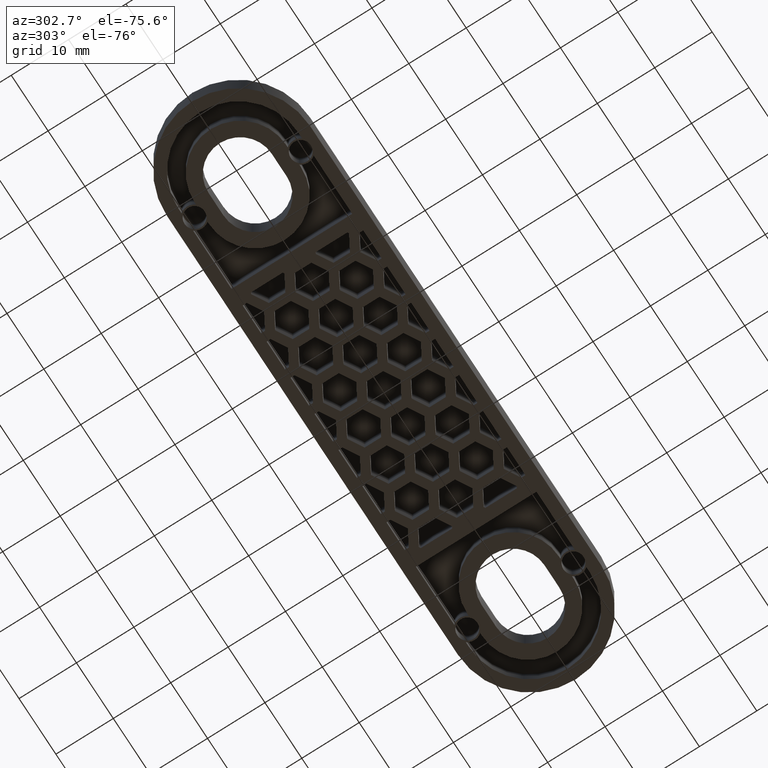
[diagram: clean part render]
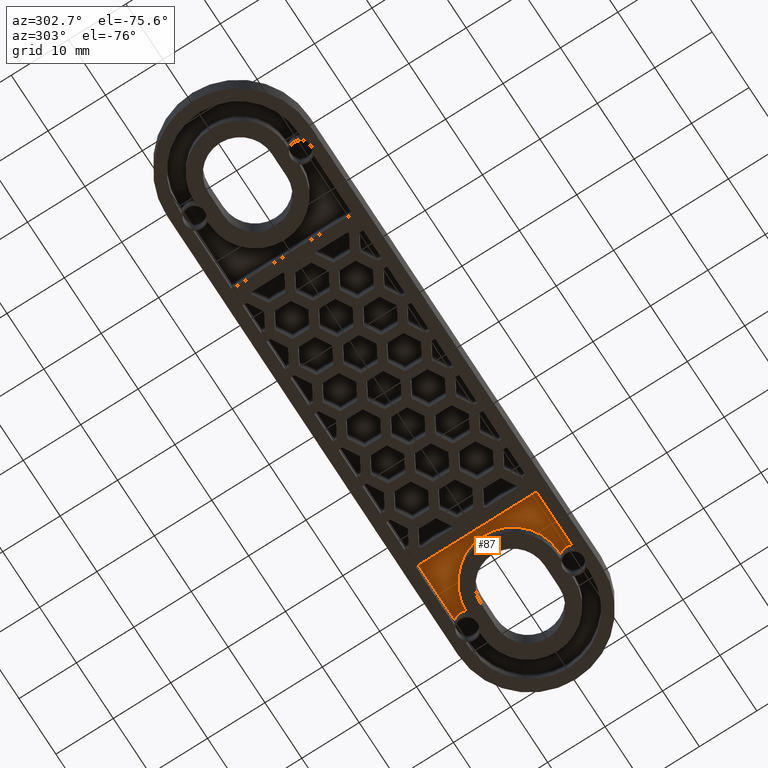
[diagram: same view with one face highlighted and labeled with its STEP entity id]
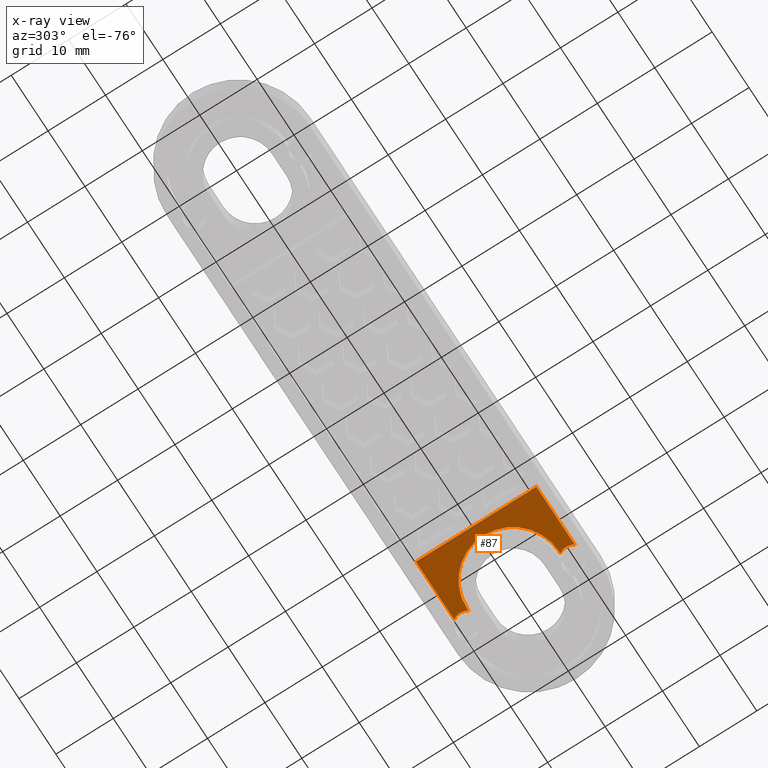
[diagram: x-ray of the same camera — body ghosted, the highlighted face saturated]
A machine part, auxiliary view. The second image highlights one B-rep face of the part: STEP entity #87.
The next image is the same camera in x-ray: the body ghosted, the highlighted face saturated — about 0% of this face is hidden behind the body in this view.
In plain terms, the highlighted planar face has unit normal (0, -0, -1).
Its self-contained STEP definition (entity closure, byte-faithful):
#87 = ADVANCED_FACE( '', ( #464 ), #465, .T. );
#464 = FACE_OUTER_BOUND( '', #1230, .T. );
#465 = PLANE( '', #1231 );
#1230 = EDGE_LOOP( '', ( #2076, #2077, #2078, #2079, #2080, #2081, #2082, #2083, #2084 ) );
#1231 = AXIS2_PLACEMENT_3D( '', #2085, #2086, #2087 );
#2076 = ORIENTED_EDGE( '', *, *, #4862, .F. );
#2077 = ORIENTED_EDGE( '', *, *, #4863, .T. );
#2078 = ORIENTED_EDGE( '', *, *, #4864, .F. );
#2079 = ORIENTED_EDGE( '', *, *, #4865, .T. );
#2080 = ORIENTED_EDGE( '', *, *, #4866, .F. );
#2081 = ORIENTED_EDGE( '', *, *, #4867, .F. );
#2082 = ORIENTED_EDGE( '', *, *, #4868, .F. );
#2083 = ORIENTED_EDGE( '', *, *, #4869, .F. );
#2084 = ORIENTED_EDGE( '', *, *, #4870, .F. );
#2085 = CARTESIAN_POINT( '', ( 39.5000000000000, -3.28575599888026E-015, 3.00000000000000 ) );
#2086 = DIRECTION( '', ( 0.000000000000000, -6.12303176911189E-017, -1.00000000000000 ) );
#2087 = DIRECTION( '', ( 0.000000000000000, -1.00000000000000, 6.12303176911189E-017 ) );
#4862 = EDGE_CURVE( '', #5815, #5816, #5817, .T. );
#4863 = EDGE_CURVE( '', #5815, #5818, #5819, .T. );
#4864 = EDGE_CURVE( '', #5820, #5818, #5821, .T. );
#4865 = EDGE_CURVE( '', #5820, #5822, #5823, .T. );
#4866 = EDGE_CURVE( '', #5824, #5822, #5825, .T. );
#4867 = EDGE_CURVE( '', #5826, #5824, #5827, .T. );
#4868 = EDGE_CURVE( '', #5828, #5826, #5829, .T. );
#4869 = EDGE_CURVE( '', #5830, #5828, #5831, .T. );
#4870 = EDGE_CURVE( '', #5816, #5830, #5832, .T. );
#5815 = VERTEX_POINT( '', #7345 );
#5816 = VERTEX_POINT( '', #7346 );
#5817 = CIRCLE( '', #7347, 2.00000000000000 );
#5818 = VERTEX_POINT( '', #7348 );
#5819 = LINE( '', #7349, #7350 );
#5820 = VERTEX_POINT( '', #7351 );
#5821 = LINE( '', #7352, #7353 );
#5822 = VERTEX_POINT( '', #7354 );
#5823 = LINE( '', #7355, #7356 );
#5824 = VERTEX_POINT( '', #7357 );
#5825 = CIRCLE( '', #7358, 2.00000000000000 );
#5826 = VERTEX_POINT( '', #7359 );
#5827 = LINE( '', #7360, #7361 );
#5828 = VERTEX_POINT( '', #7362 );
#5829 = CIRCLE( '', #7363, 7.99999999999999 );
#5830 = VERTEX_POINT( '', #7364 );
#5831 = CIRCLE( '', #7365, 8.00000000000000 );
#5832 = LINE( '', #7366, #7367 );
#7345 = CARTESIAN_POINT( '', ( 35.4387505004004, -10.5000000000000, 3.00000000000000 ) );
#7346 = CARTESIAN_POINT( '', ( 35.4387505004004, -7.99999999999998, 3.00000000000000 ) );
#7347 = AXIS2_PLACEMENT_3D( '', #9574, #9575, #9576 );
#7348 = CARTESIAN_POINT( '', ( 25.0000000000000, -10.5000000000000, 3.00000000000000 ) );
#7349 = CARTESIAN_POINT( '', ( 39.5000000000000, -10.5000000000000, 3.00000000000000 ) );
#7350 = VECTOR( '', #9577, 1000.00000000000 );
#7351 = CARTESIAN_POINT( '', ( 25.0000000000000, 10.5000000000000, 3.00000000000000 ) );
#7352 = CARTESIAN_POINT( '', ( 25.0000000000000, 10.5000000000000, 3.00000000000000 ) );
#7353 = VECTOR( '', #9578, 1000.00000000000 );
#7354 = CARTESIAN_POINT( '', ( 35.4387505004004, 10.5000000000000, 3.00000000000000 ) );
#7355 = CARTESIAN_POINT( '', ( -39.5000000000000, 10.5000000000000, 3.00000000000000 ) );
#7356 = VECTOR( '', #9579, 1000.00000000000 );
#7357 = CARTESIAN_POINT( '', ( 35.4387505004004, 8.00000000000001, 3.00000000000000 ) );
#7358 = AXIS2_PLACEMENT_3D( '', #9580, #9581, #9582 );
#7359 = CARTESIAN_POINT( '', ( 35.0000000000000, 8.00000000000000, 3.00000000000000 ) );
#7360 = CARTESIAN_POINT( '', ( 39.5000000000000, 8.00000000000001, 3.00000000000000 ) );
#7361 = VECTOR( '', #9583, 1000.00000000000 );
#7362 = CARTESIAN_POINT( '', ( 27.0000000000000, 1.23267552849110E-014, 3.00000000000000 ) );
#7363 = AXIS2_PLACEMENT_3D( '', #9584, #9585, #9586 );
#7364 = CARTESIAN_POINT( '', ( 35.0000000000000, -7.99999999999998, 3.00000000000000 ) );
#7365 = AXIS2_PLACEMENT_3D( '', #9587, #9588, #9589 );
#7366 = CARTESIAN_POINT( '', ( 39.5000000000000, -7.99999999999998, 3.00000000000000 ) );
#7367 = VECTOR( '', #9590, 1000.00000000000 );
#9574 = CARTESIAN_POINT( '', ( 37.0000000000000, -9.25000000000000, 3.00000000000000 ) );
#9575 = DIRECTION( '', ( 6.84227765783601E-049, -6.12303176911189E-017, -1.00000000000000 ) );
#9576 = DIRECTION( '', ( 1.00000000000000, 6.12303176911189E-017, -3.74915180455534E-033 ) );
#9577 = DIRECTION( '', ( -1.00000000000000, 0.000000000000000, 0.000000000000000 ) );
#9578 = DIRECTION( '', ( 0.000000000000000, -1.00000000000000, 6.12303176911189E-017 ) );
#9579 = DIRECTION( '', ( 1.00000000000000, 0.000000000000000, 0.000000000000000 ) );
#9580 = CARTESIAN_POINT( '', ( 37.0000000000000, 9.25000000000000, 3.00000000000000 ) );
#9581 = DIRECTION( '', ( 6.84227765783601E-049, -6.12303176911189E-017, -1.00000000000000 ) );
#9582 = DIRECTION( '', ( 1.00000000000000, 6.12303176911189E-017, -3.74915180455534E-033 ) );
#9583 = DIRECTION( '', ( 1.00000000000000, 1.15648231731787E-016, -7.08117796935346E-033 ) );
#9584 = CARTESIAN_POINT( '', ( 35.0000000000000, 1.23267552849110E-014, 3.00000000000000 ) );
#9585 = DIRECTION( '', ( 0.000000000000000, -6.12303176911189E-017, -1.00000000000000 ) );
#9586 = DIRECTION( '', ( 0.000000000000000, 1.00000000000000, -6.12303176911189E-017 ) );
#9587 = CARTESIAN_POINT( '', ( 35.0000000000000, 1.23267552849110E-014, 3.00000000000000 ) );
#9588 = DIRECTION( '', ( 0.000000000000000, -6.12303176911189E-017, -1.00000000000000 ) );
#9589 = DIRECTION( '', ( 0.000000000000000, 1.00000000000000, -6.12303176911189E-017 ) );
#9590 = DIRECTION( '', ( -1.00000000000000, -1.15648231731787E-016, 7.08117796935346E-033 ) );